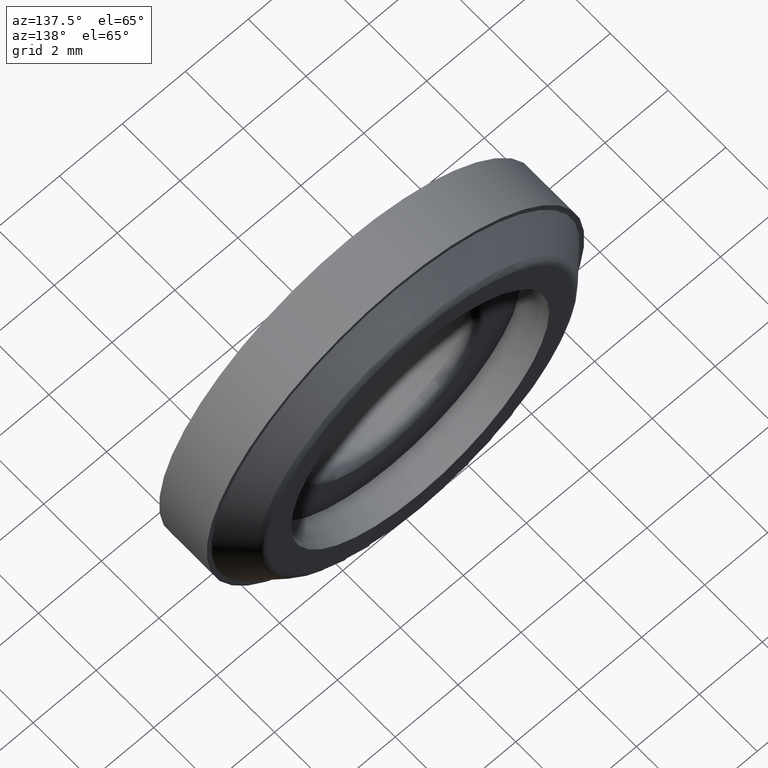
[diagram: clean part render]
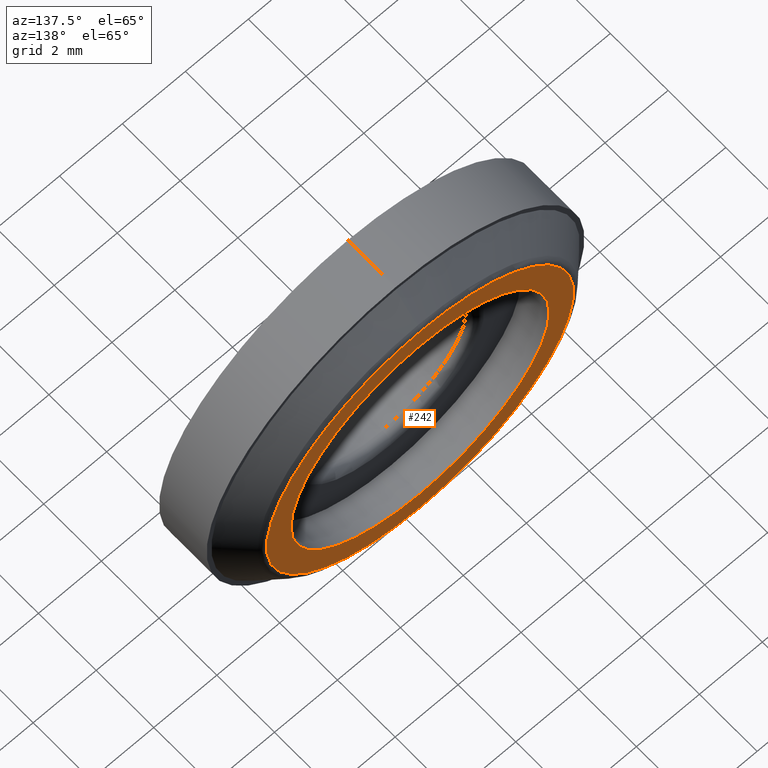
[diagram: same view with one face highlighted and labeled with its STEP entity id]
A machine part, auxiliary view. The second image highlights one B-rep face of the part: STEP entity #242.
In plain terms, the highlighted planar face has unit normal (0, 1, 0).
Its self-contained STEP definition (entity closure, byte-faithful):
#1 = CARTESIAN_POINT ( 'NONE',  ( 0.0000000000000000000, 2.500000000000000000, 0.0000000000000000000 ) ) ;
#6 = ORIENTED_EDGE ( 'NONE', *, *, #134, .T. ) ;
#9 = CARTESIAN_POINT ( 'NONE',  ( 0.0000000000000000000, 2.500000000000000000, 0.0000000000000000000 ) ) ;
#22 = AXIS2_PLACEMENT_3D ( 'NONE', #1, #282, #329 ) ;
#24 = FACE_BOUND ( 'NONE', #175, .T. ) ;
#42 = EDGE_CURVE ( 'NONE', #448, #319, #363, .T. ) ;
#47 = AXIS2_PLACEMENT_3D ( 'NONE', #408, #161, #207 ) ;
#62 = CARTESIAN_POINT ( 'NONE',  ( 5.021051876504147400E-016, 2.500000000000000000, -4.099999999999999600 ) ) ;
#96 = CIRCLE ( 'NONE', #281, 4.099999999999999600 ) ;
#120 = EDGE_CURVE ( 'NONE', #301, #320, #96, .T. ) ;
#124 = AXIS2_PLACEMENT_3D ( 'NONE', #251, #447, #480 ) ;
#125 = ORIENTED_EDGE ( 'NONE', *, *, #139, .F. ) ;
#129 = PLANE ( 'NONE',  #328 ) ;
#134 = EDGE_CURVE ( 'NONE', #319, #448, #343, .T. ) ;
#139 = EDGE_CURVE ( 'NONE', #320, #301, #306, .T. ) ;
#161 = DIRECTION ( 'NONE',  ( 0.0000000000000000000, 1.000000000000000000, 0.0000000000000000000 ) ) ;
#175 = EDGE_LOOP ( 'NONE', ( #125, #458 ) ) ;
#186 = CARTESIAN_POINT ( 'NONE',  ( 0.0000000000000000000, 2.500000000000000000, 4.099999999999999600 ) ) ;
#207 = DIRECTION ( 'NONE',  ( 0.0000000000000000000, 0.0000000000000000000, 1.000000000000000000 ) ) ;
#218 = EDGE_LOOP ( 'NONE', ( #383, #6 ) ) ;
#242 = ADVANCED_FACE ( 'NONE', ( #312, #24 ), #129, .T. ) ;
#247 = DIRECTION ( 'NONE',  ( 0.0000000000000000000, 1.000000000000000000, 0.0000000000000000000 ) ) ;
#248 = CARTESIAN_POINT ( 'NONE',  ( 0.0000000000000000000, 2.500000000000000000, 4.875735931288076600 ) ) ;
#251 = CARTESIAN_POINT ( 'NONE',  ( 0.0000000000000000000, 2.500000000000000000, 0.0000000000000000000 ) ) ;
#281 = AXIS2_PLACEMENT_3D ( 'NONE', #431, #316, #358 ) ;
#282 = DIRECTION ( 'NONE',  ( 0.0000000000000000000, 1.000000000000000000, 0.0000000000000000000 ) ) ;
#301 = VERTEX_POINT ( 'NONE', #62 ) ;
#306 = CIRCLE ( 'NONE', #47, 4.099999999999999600 ) ;
#312 = FACE_OUTER_BOUND ( 'NONE', #218, .T. ) ;
#316 = DIRECTION ( 'NONE',  ( 0.0000000000000000000, 1.000000000000000000, 0.0000000000000000000 ) ) ;
#319 = VERTEX_POINT ( 'NONE', #412 ) ;
#320 = VERTEX_POINT ( 'NONE', #186 ) ;
#328 = AXIS2_PLACEMENT_3D ( 'NONE', #9, #247, #413 ) ;
#329 = DIRECTION ( 'NONE',  ( 0.0000000000000000000, 0.0000000000000000000, 1.000000000000000000 ) ) ;
#343 = CIRCLE ( 'NONE', #22, 4.875735931288076600 ) ;
#358 = DIRECTION ( 'NONE',  ( 0.0000000000000000000, 0.0000000000000000000, 1.000000000000000000 ) ) ;
#363 = CIRCLE ( 'NONE', #124, 4.875735931288076600 ) ;
#383 = ORIENTED_EDGE ( 'NONE', *, *, #42, .T. ) ;
#408 = CARTESIAN_POINT ( 'NONE',  ( 0.0000000000000000000, 2.500000000000000000, 0.0000000000000000000 ) ) ;
#412 = CARTESIAN_POINT ( 'NONE',  ( 6.100947810175008500E-016, 2.500000000000000000, -4.875735931288076600 ) ) ;
#413 = DIRECTION ( 'NONE',  ( 0.0000000000000000000, -0.0000000000000000000, 1.000000000000000000 ) ) ;
#431 = CARTESIAN_POINT ( 'NONE',  ( 0.0000000000000000000, 2.500000000000000000, 0.0000000000000000000 ) ) ;
#447 = DIRECTION ( 'NONE',  ( 0.0000000000000000000, 1.000000000000000000, 0.0000000000000000000 ) ) ;
#448 = VERTEX_POINT ( 'NONE', #248 ) ;
#458 = ORIENTED_EDGE ( 'NONE', *, *, #120, .F. ) ;
#480 = DIRECTION ( 'NONE',  ( 0.0000000000000000000, 0.0000000000000000000, 1.000000000000000000 ) ) ;